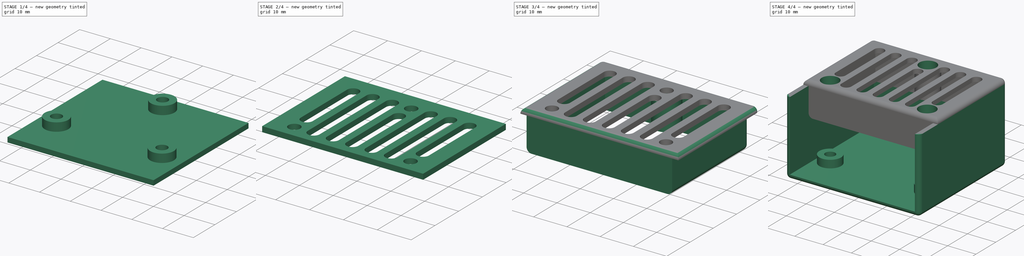
[diagram: build sequence overview — one tinted view per stage of 4, left to right]
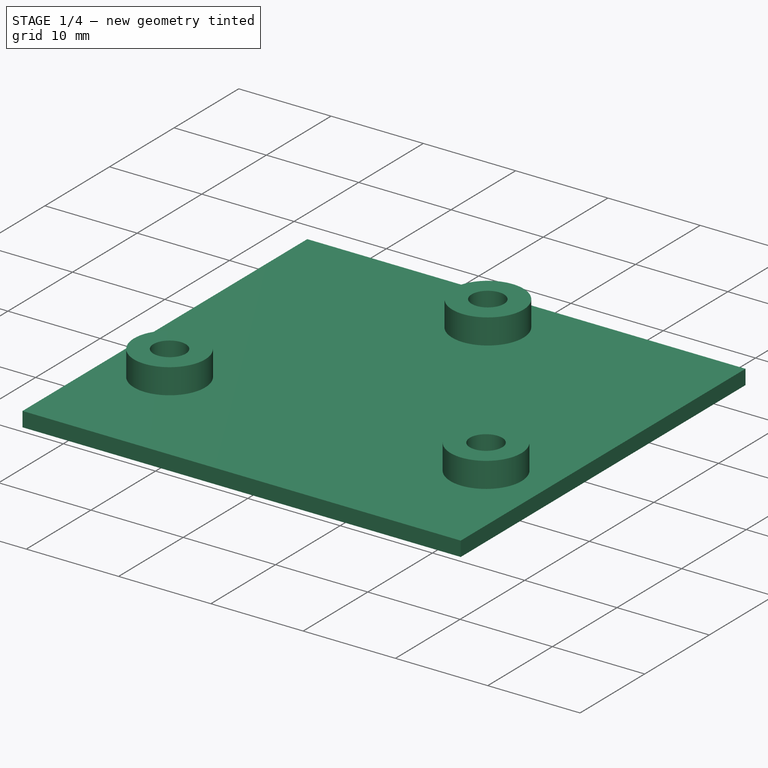
[diagram: stage 1 of 4 — iso view after this stage's code; geometry added in this stage tinted green]
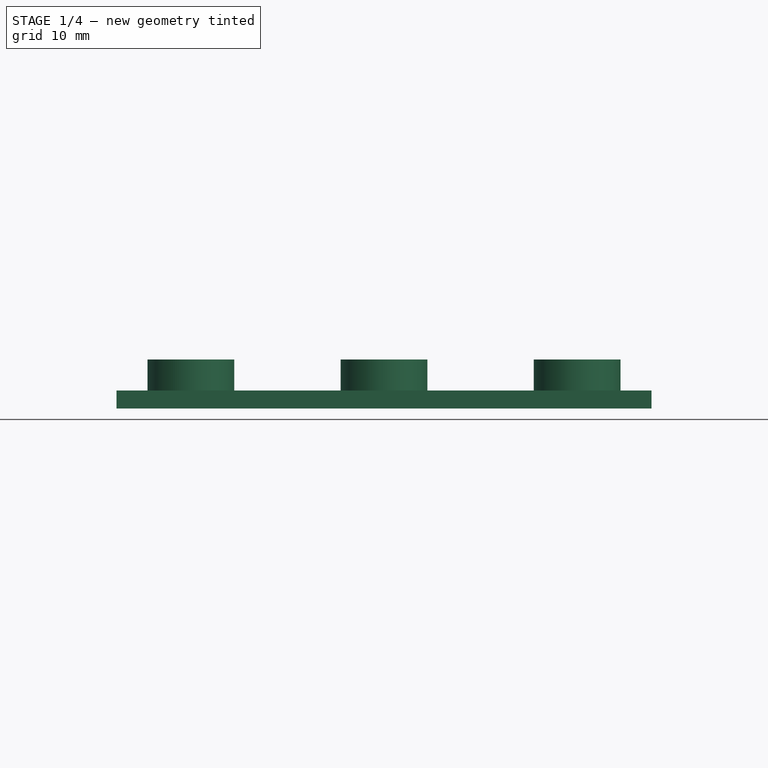
[diagram: stage 1 of 4 — front view after this stage's code; geometry added in this stage tinted green]
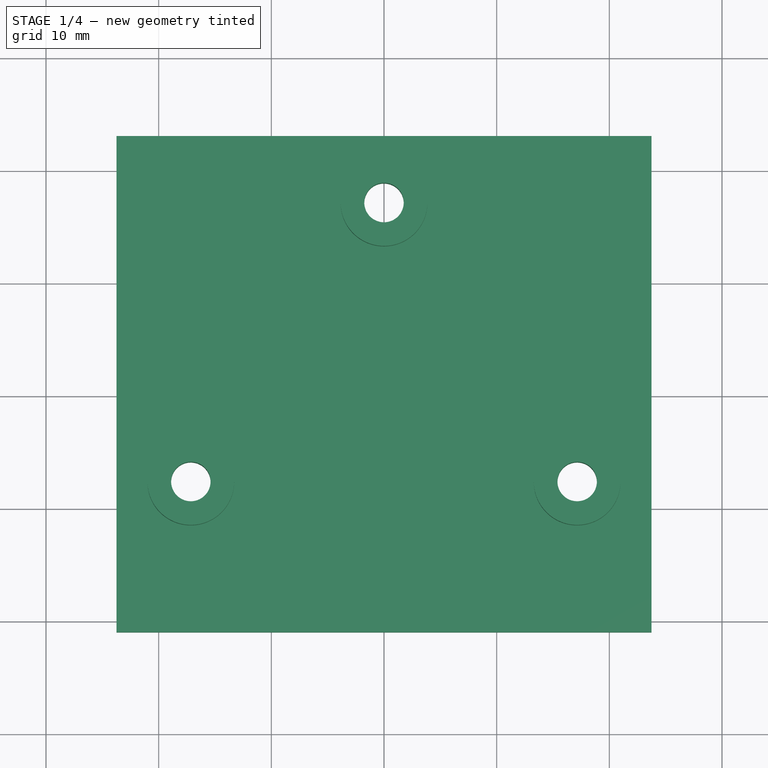
[diagram: stage 1 of 4 — top view after this stage's code; geometry added in this stage tinted green]
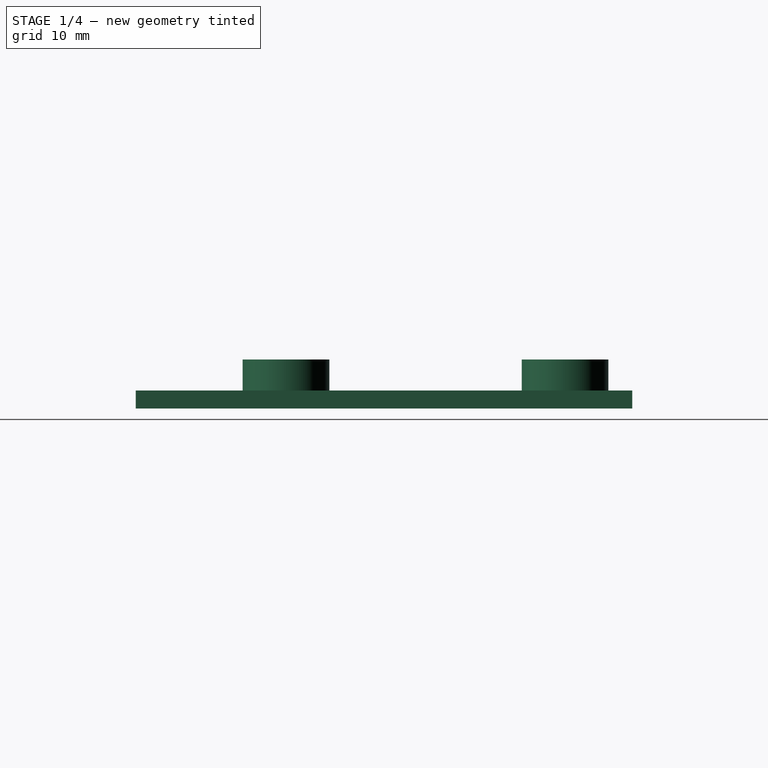
[diagram: stage 1 of 4 — right view after this stage's code; geometry added in this stage tinted green]
FCSTD DOCUMENT  (FreeCAD 0.19R24291 (Git))
Label: ESPDimmer
License: All rights reserved
LicenseURL: http://en.wikipedia.org/wiki/All_rights_reserved
objects: Sketcher::SketchObject×9, PartDesign::Pad×6, PartDesign::Pocket×2, PartDesign::Fillet×2, PartDesign::Body×2, Spreadsheet::Sheet×1, PartDesign::ShapeBinder×1
note: 32 computed .brp shape members not serialized (recipe doc carries the construction recipe); baked Part::Feature solids carry a one-line shape summary decoded from their .brp

FEATURE [Sketcher::SketchObject] Sketch  label="B_Template_top"
  FullyConstrained = true
  MapMode = 5
  Support = -> [XY_Plane]
  sketch-geometry (24):
    g0: LineSegment StartX=-21.59 StartY=20.955 StartZ=0 EndX=21.59 EndY=20.955 EndZ=0
    g1: LineSegment StartX=21.59 StartY=20.955 StartZ=0 EndX=21.59 EndY=-20.955 EndZ=0
    g2: LineSegment StartX=21.59 StartY=-20.955 StartZ=0 EndX=-21.59 EndY=-20.955 EndZ=0
    g3: LineSegment StartX=-21.59 StartY=-20.955 StartZ=0 EndX=-21.59 EndY=20.955 EndZ=0
    g4: LineSegment StartX=-1.3e-15 StartY=20.955 StartZ=0 EndX=-1.3e-15 EndY=-20.955 EndZ=0
    g5: Circle CenterX=-1.3e-15 CenterY=17.145 CenterZ=0 NormalX=0 NormalY=0 NormalZ=1 AngleXU=0 Radius=1.75
    g6: Circle CenterX=-17.145 CenterY=-7.62 CenterZ=0 NormalX=0 NormalY=0 NormalZ=1 AngleXU=0 Radius=1.75
    g7: Circle CenterX=17.145 CenterY=-7.62 CenterZ=0 NormalX=0 NormalY=0 NormalZ=1 AngleXU=0 Radius=1.75
    g8: LineSegment StartX=-21.59 StartY=-11.755 StartZ=0 EndX=21.59 EndY=-11.755 EndZ=0
    g9: LineSegment StartX=-22.09 StartY=21.455 StartZ=0 EndX=22.09 EndY=21.455 EndZ=0
    g10: LineSegment StartX=22.09 StartY=21.455 StartZ=0 EndX=22.09 EndY=-20.955 EndZ=0
    g11: LineSegment StartX=-22.09 StartY=-20.955 StartZ=0 EndX=-22.09 EndY=21.455 EndZ=0
    g12: LineSegment StartX=-23.74 StartY=23.105 StartZ=0 EndX=23.74 EndY=23.105 EndZ=0
    g13: LineSegment StartX=23.74 StartY=23.105 StartZ=0 EndX=23.74 EndY=-20.955 EndZ=0
    g14: LineSegment StartX=-23.74 StartY=-20.955 StartZ=0 EndX=-23.74 EndY=23.105 EndZ=0
    g15: LineSegment StartX=-22.09 StartY=21.455 StartZ=0 EndX=-23.74 EndY=21.455 EndZ=0
    g16: LineSegment StartX=22.09 StartY=21.455 StartZ=0 EndX=22.09 EndY=23.105 EndZ=0
    g17: LineSegment StartX=22.09 StartY=-20.955 StartZ=0 EndX=23.74 EndY=-20.955 EndZ=0
    g18: LineSegment StartX=-21.59 StartY=20.955 StartZ=0 EndX=-22.09 EndY=20.955 EndZ=0
    g19: LineSegment StartX=21.59 StartY=20.955 StartZ=0 EndX=21.59 EndY=21.455 EndZ=0
    g20: LineSegment StartX=21.59 StartY=-20.955 StartZ=0 EndX=22.09 EndY=-20.955 EndZ=0
    g21: LineSegment StartX=-21.59 StartY=-10.105 StartZ=0 EndX=21.59 EndY=-10.105 EndZ=0
    g22: LineSegment StartX=-17.145 StartY=-10.105 StartZ=0 EndX=-17.145 EndY=-11.755 EndZ=0
    g23: LineSegment StartX=-23.74 StartY=-20.955 StartZ=0 EndX=-22.09 EndY=-20.955 EndZ=0
  constraints (72):
    c: Coincident(g0,g1)
    c: Coincident(g1,g2)
    c: Coincident(g2,g3)
    c: Coincident(g3,g0)
    c: Horizontal(g0)
    c: Horizontal(g2)
    c: Vertical(g1)
    c: Vertical(g3)
    c: DistanceX(g0,g0) = 43.18
    c: DistanceY(g3,g3) = 41.91
    c: PointOnObject(g4,g2)
    c: Vertical(g4)
    c: Symmetric(g0,g0,g4)
    c: PointOnObject(g5,g4)
    c: Equal(g7,g6)
    c: Equal(g6,g5)
    c: Radius(g5) = 1.75
    c: Symmetric(g6,g7,g4)
    c: DistanceY(g5,g0) = 3.81
    c: DistanceX(g6,g4) = 17.145
    c: DistanceY(g2,g6) = 13.335
    c: PointOnObject(g8,g3)
    c: PointOnObject(g8,g1)
    c: Horizontal(g8)
    c: DistanceY(g2,g8) = 9.2
    c: Coincident(g9,g10)
    c: Coincident(g11,g9)
    c: Horizontal(g9)
    c: Vertical(g10)
    c: Vertical(g11)
    c: Coincident(g12,g13)
    c: Coincident(g14,g12)
    c: Horizontal(g12)
    c: Vertical(g13)
    c: Vertical(g14)
    c: Coincident(g15,g9)
    c: PointOnObject(g15,g14)
    c: Horizontal(g15)
    c: Coincident(g16,g9)
    c: PointOnObject(g16,g12)
    c: Vertical(g16)
    c: Coincident(g17,g10)
    c: Horizontal(g17)
    c: Equal(g15,g16)
    c: Equal(g16,g17)
    c: DistanceY(g15,g12) = 1.65
    c: Coincident(g18,g0)
    c: PointOnObject(g18,g11)
    c: Horizontal(g18)
    c: Coincident(g19,g0)
    c: PointOnObject(g19,g9)
    c: Vertical(g19)
    c: Coincident(g20,g1)
    c: Horizontal(g20)
    c: Equal(g18,g19)
    c: Equal(g19,g20)
    c: DistanceY(g18,g15) = 0.5
    c: PointOnObject(g21,g3)
    c: PointOnObject(g21,g1)
    c: Horizontal(g21)
    c: PointOnObject(g22,g21)
    c: PointOnObject(g22,g8)
    c: Vertical(g22)
    c: PointOnObject(g6,g22)
    c: Symmetric(g2,g0,g-1)  '__ANCHOR__'
    c: Coincident(g13,g17)
    c: Coincident(g10,g20)
    c: Coincident(g23,g14)
    c: Coincident(g23,g11)
    c: Horizontal(g23)
    c: PointOnObject(g11,g2)
    c: Equal(g22,g15)
FEATURE [Sketcher::SketchObject] Sketch001  label="B_Base"
  ExternalGeometry = -> [Sketch]
  FullyConstrained = true
  MapMode = 5
  Support = -> [XY_Plane]
  sketch-geometry (7):
    g0: LineSegment StartX=-23.74 StartY=23.105 StartZ=0 EndX=23.74 EndY=23.105 EndZ=0
    g1: LineSegment StartX=23.74 StartY=23.105 StartZ=0 EndX=23.74 EndY=-20.955 EndZ=0
    g2: LineSegment StartX=23.74 StartY=-20.955 StartZ=0 EndX=-23.74 EndY=-20.955 EndZ=0
    g3: LineSegment StartX=-23.74 StartY=-20.955 StartZ=0 EndX=-23.74 EndY=23.105 EndZ=0
    g4: Circle CenterX=0 CenterY=17.145 CenterZ=0 NormalX=0 NormalY=0 NormalZ=1 AngleXU=0 Radius=1.75
    g5: Circle CenterX=17.145 CenterY=-7.62 CenterZ=0 NormalX=0 NormalY=0 NormalZ=1 AngleXU=0 Radius=1.75
    g6: Circle CenterX=-17.145 CenterY=-7.62 CenterZ=0 NormalX=0 NormalY=0 NormalZ=1 AngleXU=0 Radius=1.75
  constraints (16):
    c: Coincident(g0,g1)
    c: Coincident(g1,g2)
    c: Coincident(g2,g3)
    c: Coincident(g3,g0)
    c: Horizontal(g0)
    c: Horizontal(g2)
    c: Vertical(g1)
    c: Vertical(g3)
    c: Coincident(g0,g-3)
    c: Coincident(g1,g-4)
    c: Coincident(g4,g-5)
    c: Coincident(g5,g-7)
    c: Coincident(g6,g-6)
    c: Equal(g6,g-6)
    c: Equal(g4,g-5)
    c: Equal(g5,g-7)
FEATURE [PartDesign::Pad] Pad  label="B_Base_"
  Direction = (1,1,1)
  Length = 1.6
  Length2 = 100
  Profile = -> Sketch001
  Type = 0
FEATURE [Sketcher::SketchObject] Sketch002  label="B_Walls"
  AttachmentOffset = pos=(0,0,1.6) rot=(0,0,1;0rad)
  ExternalGeometry = -> [Sketch]
  FullyConstrained = true
  MapMode = 5
  Placement = pos=(0,0,1.6) rot=(0,0,1;0rad)
  Support = -> [XY_Plane]
  expr: .AttachmentOffset.Base.z = <<B_Base>>.AttachmentOffset.Base.z + <<B_Base_>>.Length
  sketch-geometry (8):
    g0: LineSegment StartX=-23.74 StartY=-20.955 StartZ=0 EndX=-22.09 EndY=-20.955 EndZ=0
    g1: LineSegment StartX=-22.09 StartY=-20.955 StartZ=0 EndX=-22.09 EndY=21.455 EndZ=0
    g2: LineSegment StartX=-22.09 StartY=21.455 StartZ=0 EndX=22.09 EndY=21.455 EndZ=0
    g3: LineSegment StartX=22.09 StartY=21.455 StartZ=0 EndX=22.09 EndY=-20.955 EndZ=0
    g4: LineSegment StartX=22.09 StartY=-20.955 StartZ=0 EndX=23.74 EndY=-20.955 EndZ=0
    g5: LineSegment StartX=23.74 StartY=-20.955 StartZ=0 EndX=23.74 EndY=23.105 EndZ=0
    g6: LineSegment StartX=23.74 StartY=23.105 StartZ=0 EndX=-23.74 EndY=23.105 EndZ=0
    g7: LineSegment StartX=-23.74 StartY=23.105 StartZ=0 EndX=-23.74 EndY=-20.955 EndZ=0
  constraints (16):
    c: Coincident(g-3,g0)
    c: Coincident(g0,g-5)
    c: Coincident(g0,g1)
    c: Coincident(g1,g-5)
    c: Coincident(g1,g2)
    c: Coincident(g2,g-4)
    c: Coincident(g2,g3)
    c: Coincident(g3,g-4)
    c: Coincident(g3,g4)
    c: Coincident(g4,g-6)
    c: Coincident(g4,g5)
    c: Coincident(g5,g-6)
    c: Coincident(g5,g6)
    c: Coincident(g6,g-3)
    c: Coincident(g6,g7)
    c: Coincident(g7,g0)
FEATURE [Sketcher::SketchObject] Sketch003  label="B_Bumps"
  AttachmentOffset = pos=(0,0,1.6) rot=(0,0,1;0rad)
  ExternalGeometry = -> [Sketch]
  FullyConstrained = true
  MapMode = 5
  Placement = pos=(0,0,1.6) rot=(0,0,1;0rad)
  Support = -> [XY_Plane]
  expr: .AttachmentOffset.Base.z = <<B_Base>>.AttachmentOffset.Base.z + <<B_Base_>>.Length
  expr: Constraints[1] = <<Screws>>.M3NutRadius + 0.45mm
  sketch-geometry (6):
    g0: Circle CenterX=-17.145 CenterY=-7.62 CenterZ=0 NormalX=0 NormalY=0 NormalZ=1 AngleXU=0 Radius=3.85
    g1: Circle CenterX=0 CenterY=17.145 CenterZ=0 NormalX=0 NormalY=0 NormalZ=1 AngleXU=0 Radius=3.85
    g2: Circle CenterX=17.145 CenterY=-7.62 CenterZ=0 NormalX=0 NormalY=0 NormalZ=1 AngleXU=0 Radius=3.85
    g3: Circle CenterX=-17.145 CenterY=-7.62 CenterZ=0 NormalX=0 NormalY=0 NormalZ=1 AngleXU=0 Radius=1.75
    g4: Circle CenterX=0 CenterY=17.145 CenterZ=0 NormalX=0 NormalY=0 NormalZ=1 AngleXU=0 Radius=1.75
    g5: Circle CenterX=17.145 CenterY=-7.62 CenterZ=0 NormalX=0 NormalY=0 NormalZ=1 AngleXU=0 Radius=1.75
  constraints (12):
    c: Coincident(g0,g-5)
    c: Radius(g0) = 3.85
    c: Coincident(g1,g-3)
    c: Coincident(g2,g-4)
    c: Equal(g0,g1)
    c: Equal(g1,g2)
    c: Coincident(g3,g0)
    c: Coincident(g4,g1)
    c: Coincident(g5,g2)
    c: Equal(g5,g-4)
    c: Equal(g3,g-5)
    c: Equal(g4,g-3)
FEATURE [Spreadsheet::Sheet] Spreadsheet002  label="Screws"
  cells = A2=Screw dimensions; B4=Name; C4=Value; D4=Description; B5=M3Radius; C5(M3Radius)==1.75mm; B6=M3HeadRadius; C6(M3HeadRadius)==3mm; B7=M3HeadHeight; C7(M3HeadHeight)==2.95mm; B8=M3WasherRadius; C8(M3WasherRadius)==3.7mm; B9=M3WasherHeight; C9(M3WasherHeight)==0.5mm; B10=M3NutRadius; C10(M3NutRadius)==3.4mm; B11=M3NutHeight; C11(M3NutHeight)==2.75mm; B12=M3NylocNutHeight; C12(M3NylocNutHeight)==4.1mm; B13=M3NutChannelWidth; C13(M3NutChannelWidth)==5.65mm; B14=M4Radius; C14(M4Radius)==2.2mm; B15=M4HeadRadius; C15(M4HeadRadius)==3.75mm; B16=M4HeadHeight; C16(M4HeadHeight)==4mm; B17=M4WasherRadius; C17(M4WasherRadius)==4.7mm; B18=M4NutRadius; C18(M4NutRadius)==4.25mm; B19=M4NutHeight; C19(M4NutHeight)==3.3mm; B20=M4NutDuctWidth; C20(M4NutDuctWidth)==7.1mm; B21=M5Radius; C21(M5Radius)==2.66mm; B22=M5HeadRadius; C22(M5HeadRadius)==4.5mm; B23=M5HeadHeight; C23(M5HeadHeight)==5mm; B24=M5NutRadius; C24(M5NutRadius)==4.75mm; B25=M5NutHeight; C25(M5NutHeight)==4mm; B27=M6Radius; C27(M6Radius)==3.15mm; B28=M6HeadRadius; C28(M6HeadRadius)==5.5mm; B35=0
FEATURE [PartDesign::Pad] Pad002  label="B_Bumps_"
  BaseFeature = -> Pad
  Direction = (1,1,1)
  Length = 2.75
  Length2 = 100
  Profile = -> Sketch003
  Type = 0
  expr: Length = <<Screws>>.M3NutHeight
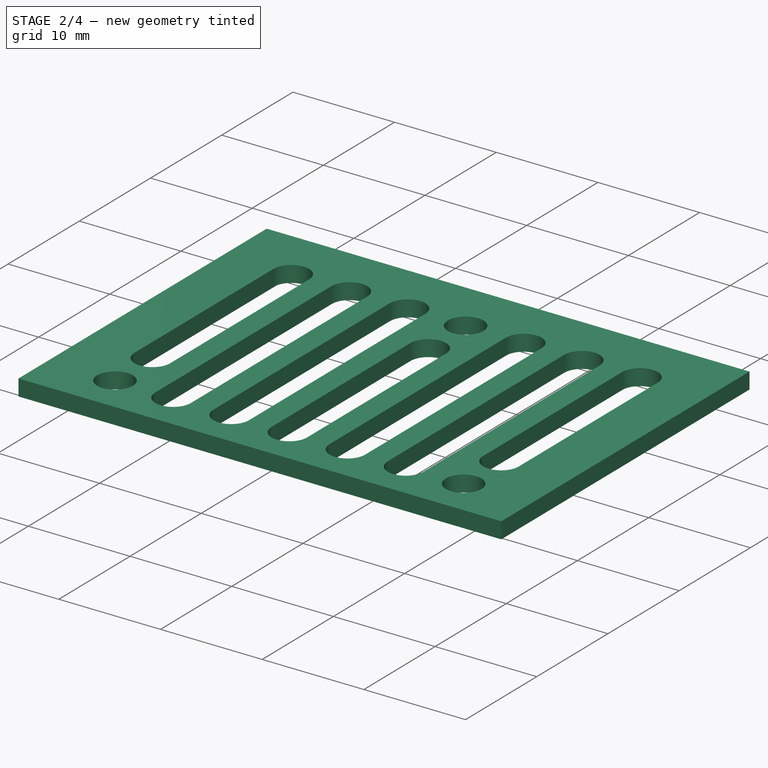
[diagram: stage 2 of 4 — iso view after this stage's code; geometry added in this stage tinted green]
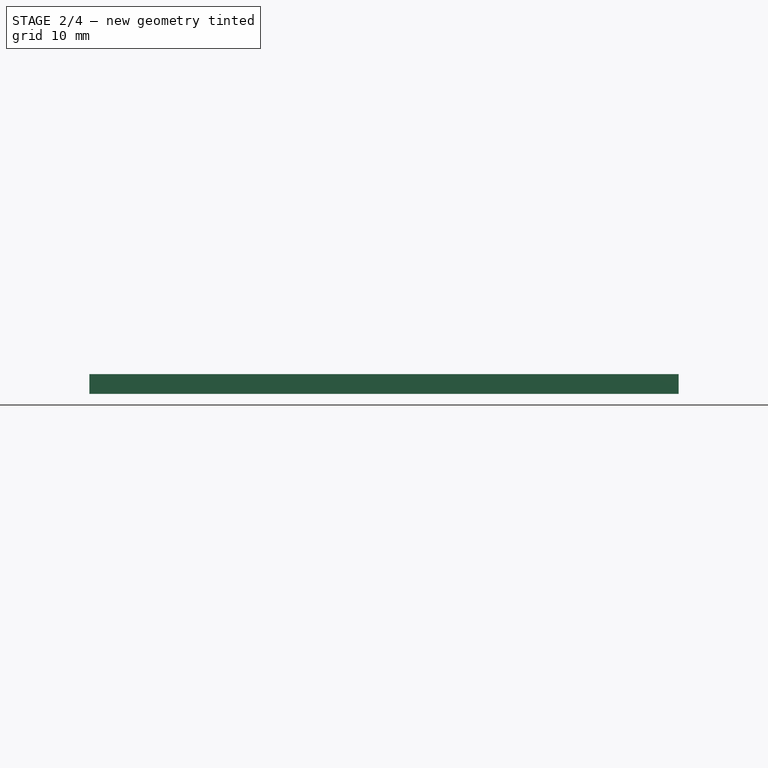
[diagram: stage 2 of 4 — front view after this stage's code; geometry added in this stage tinted green]
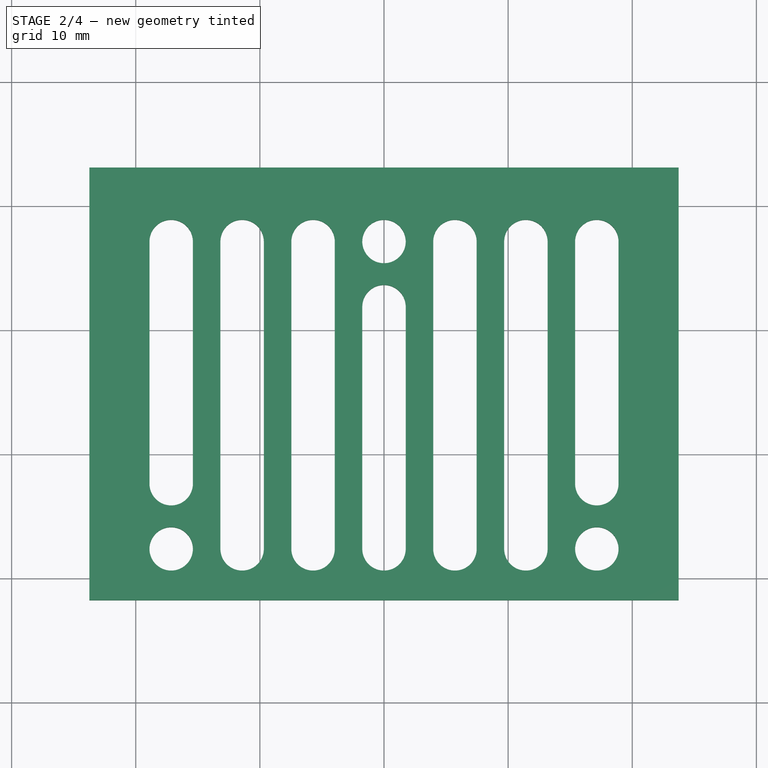
[diagram: stage 2 of 4 — top view after this stage's code; geometry added in this stage tinted green]
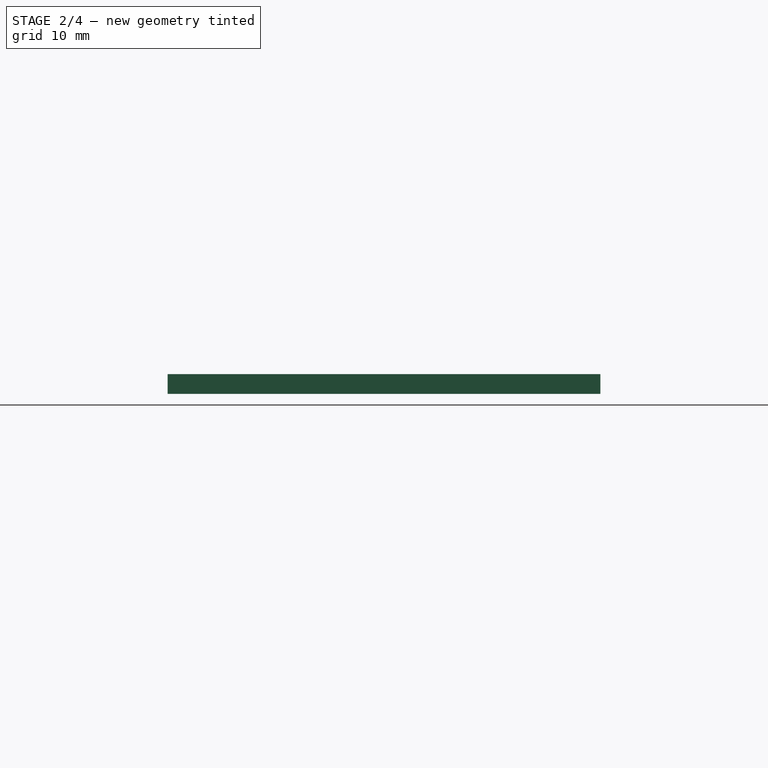
[diagram: stage 2 of 4 — right view after this stage's code; geometry added in this stage tinted green]
FEATURE [Sketcher::SketchObject] Sketch004  label="B_Nuts"
  AttachmentOffset = pos=(0,0,2.75) rot=(0,0,1;0rad)
  ExternalGeometry = -> [Sketch]
  FullyConstrained = true
  MapMode = 5
  Placement = pos=(0,0,2.75) rot=(0,0,1;0rad)
  Support = -> [XY_Plane]
  expr: .AttachmentOffset.Base.z = <<Screws>>.M3NutHeight
  expr: Constraints[55] = <<Screws>>.M3NutRadius
  sketch-geometry (21):
    g0: LineSegment StartX=3.4 StartY=17.145 StartZ=0 EndX=1.7 EndY=20.0895 EndZ=0
    g1: LineSegment StartX=1.7 StartY=20.0895 StartZ=0 EndX=-1.7 EndY=20.0895 EndZ=0
    g2: LineSegment StartX=-1.7 StartY=20.0895 StartZ=0 EndX=-3.4 EndY=17.145 EndZ=0
    g3: LineSegment StartX=-3.4 StartY=17.145 StartZ=0 EndX=-1.7 EndY=14.2005 EndZ=0
    g4: LineSegment StartX=-1.7 StartY=14.2005 StartZ=0 EndX=1.7 EndY=14.2005 EndZ=0
    g5: LineSegment StartX=1.7 StartY=14.2005 StartZ=0 EndX=3.4 EndY=17.145 EndZ=0
    g6: Circle CenterX=-1.3e-15 CenterY=17.145 CenterZ=0 NormalX=0 NormalY=0 NormalZ=1 AngleXU=0 Radius=3.4
    g7: LineSegment StartX=14.2005 StartY=-5.92 StartZ=0 EndX=14.2005 EndY=-9.32 EndZ=0
    g8: LineSegment StartX=14.2005 StartY=-9.32 StartZ=0 EndX=17.145 EndY=-11.02 EndZ=0
    g9: LineSegment StartX=17.145 StartY=-11.02 StartZ=0 EndX=20.0895 EndY=-9.32 EndZ=0
    g10: LineSegment StartX=20.0895 StartY=-9.32 StartZ=0 EndX=20.0895 EndY=-5.92 EndZ=0
    g11: LineSegment StartX=20.0895 StartY=-5.92 StartZ=0 EndX=17.145 EndY=-4.22 EndZ=0
    g12: LineSegment StartX=17.145 StartY=-4.22 StartZ=0 EndX=14.2005 EndY=-5.92 EndZ=0
    g13: Circle CenterX=17.145 CenterY=-7.62 CenterZ=0 NormalX=0 NormalY=0 NormalZ=1 AngleXU=0 Radius=3.4
    g14: LineSegment StartX=-14.2005 StartY=-5.92 StartZ=0 EndX=-17.145 EndY=-4.22 EndZ=0
    g15: LineSegment StartX=-17.145 StartY=-4.22 StartZ=0 EndX=-20.0895 EndY=-5.92 EndZ=0
    g16: LineSegment StartX=-20.0895 StartY=-5.92 StartZ=0 EndX=-20.0895 EndY=-9.32 EndZ=0
    g17: LineSegment StartX=-20.0895 StartY=-9.32 StartZ=0 EndX=-17.145 EndY=-11.02 EndZ=0
    g18: LineSegment StartX=-17.145 StartY=-11.02 StartZ=0 EndX=-14.2005 EndY=-9.32 EndZ=0
    g19: LineSegment StartX=-14.2005 StartY=-9.32 StartZ=0 EndX=-14.2005 EndY=-5.92 EndZ=0
    g20: Circle CenterX=-17.145 CenterY=-7.62 CenterZ=0 NormalX=0 NormalY=0 NormalZ=1 AngleXU=0 Radius=3.4
  constraints (48):
    c: Coincident(g0,g1)
    c: Coincident(g1,g2)
    c: Coincident(g2,g3)
    c: Coincident(g3,g4)
    c: Coincident(g4,g5)
    c: Coincident(g5,g0)
    c: Equal(g0, g1-g5) x5
    c: PointOnObject(g0,g6)
    c: PointOnObject(g1,g6)
    c: PointOnObject(g2,g6)
    c: PointOnObject(g3,g6)
    c: PointOnObject(g4,g6)
    c: PointOnObject(g5,g6)
    c: Coincident(g6,g-3)
    c: Coincident(g7,g8)
    c: Coincident(g8,g9)
    c: Coincident(g9,g10)
    c: Coincident(g10,g11)
    c: Coincident(g11,g12)
    c: Coincident(g12,g7)
    c: Equal(g7, g8-g12) x5
    c: PointOnObject(g7,g13)
    c: PointOnObject(g8,g13)
    c: PointOnObject(g9,g13)
    c: PointOnObject(g10,g13)
    c: PointOnObject(g11,g13)
    c: PointOnObject(g12,g13)
    c: Coincident(g13,g-5)
    c: Coincident(g14,g15)
    c: Coincident(g15,g16)
    c: Coincident(g16,g17)
    c: Coincident(g17,g18)
    c: Coincident(g18,g19)
    c: Coincident(g19,g14)
    c: Equal(g14, g15-g19) x5
    c: PointOnObject(g14,g20)
    c: PointOnObject(g15,g20)
    c: PointOnObject(g16,g20)
    c: PointOnObject(g17,g20)
    c: PointOnObject(g18,g20)
    c: PointOnObject(g19,g20)
    c: Coincident(g20,g-4)
    c: Horizontal(g1)
    c: Radius(g20) = 3.4
    c: Equal(g20,g6)
    c: Equal(g6,g13)
    c: Vertical(g16)
    c: Vertical(g7)
FEATURE [PartDesign::Pocket] Pocket  label="B_Nuts_"
  BaseFeature = -> Pad002
  Length = 5
  Length2 = 100
  Profile = -> Sketch004
  Type = 1
FEATURE [PartDesign::Pad] Pad001  label="B_Walls_"
  BaseFeature = -> Pocket
  Direction = (1,1,1)
  Length = 24.75
  Length2 = 100
  Profile = -> Sketch002
  Refine = true
  Type = 0
  expr: Length = <<B_Bumps_>>.Length + 22mm
FEATURE [PartDesign::Body] Body  label="Bottom"
  Group = -> [Sketch,Sketch001,Pad,Sketch002,Sketch003,Pad002,Sketch004,Pocket,Pad001,Fillet]
  Origin = -> Origin
  Tip = -> Fillet
FEATURE [PartDesign::ShapeBinder] ShapeBinder  label="T_B_top"
  Support = -> [Sketch]
  TraceSupport = false
FEATURE [Sketcher::SketchObject] Sketch005  label="T_Base"
  AttachmentOffset = pos=(0,0,26.35) rot=(0,0,1;0rad)
  ExternalGeometry = -> [ShapeBinder]
  FullyConstrained = true
  MapMode = 5
  Placement = pos=(0,0,26.35) rot=(0,0,1;0rad)
  Support = -> [XY_Plane001]
  expr: .AttachmentOffset.Base.z = <<B_Walls>>.AttachmentOffset.Base.z + <<B_Walls_>>.Length
  sketch-geometry (47):
    g0: LineSegment StartX=-23.74 StartY=23.105 StartZ=0 EndX=23.74 EndY=23.105 EndZ=0
    g1: LineSegment StartX=23.74 StartY=23.105 StartZ=0 EndX=23.74 EndY=-11.755 EndZ=0
    g2: LineSegment StartX=23.74 StartY=-11.755 StartZ=0 EndX=-23.74 EndY=-11.755 EndZ=0
    g3: LineSegment StartX=-23.74 StartY=-11.755 StartZ=0 EndX=-23.74 EndY=23.105 EndZ=0
    g4: Circle CenterX=-17.145 CenterY=-7.62 CenterZ=0 NormalX=0 NormalY=0 NormalZ=1 AngleXU=0 Radius=1.75
    g5: Circle CenterX=-1.3e-15 CenterY=17.145 CenterZ=0 NormalX=0 NormalY=0 NormalZ=1 AngleXU=0 Radius=1.75
    g6: Circle CenterX=17.145 CenterY=-7.62 CenterZ=0 NormalX=0 NormalY=0 NormalZ=1 AngleXU=0 Radius=1.75
    g7: ArcOfCircle CenterX=-17.145 CenterY=17.145 CenterZ=0 NormalX=0 NormalY=0 NormalZ=1 AngleXU=0 Radius=1.75 StartAngle=1e-16 EndAngle=3.14159
    g8: ArcOfCircle CenterX=-17.145 CenterY=-2.37 CenterZ=0 NormalX=0 NormalY=0 NormalZ=1 AngleXU=0 Radius=1.75 StartAngle=3.14159 EndAngle=6.28319
    g9: LineSegment StartX=-18.895 StartY=17.145 StartZ=0 EndX=-18.895 EndY=-2.37 EndZ=0
    g10: LineSegment StartX=-15.395 StartY=17.145 StartZ=0 EndX=-15.395 EndY=-2.37 EndZ=0
    g11: LineSegment StartX=-17.145 StartY=-7.62 StartZ=0 EndX=-17.145 EndY=-5.87 EndZ=0
    g12: LineSegment StartX=-17.145 StartY=-5.87 StartZ=0 EndX=-17.145 EndY=-4.12 EndZ=0
    g13: ArcOfCircle CenterX=-11.43 CenterY=-7.62 CenterZ=0 NormalX=0 NormalY=0 NormalZ=1 AngleXU=0 Radius=1.75 StartAngle=3.14159 EndAngle=6.28319
    g14: LineSegment StartX=-13.18 StartY=17.145 StartZ=0 EndX=-13.18 EndY=-7.62 EndZ=0
    g15: ArcOfCircle CenterX=-11.43 CenterY=17.145 CenterZ=0 NormalX=0 NormalY=0 NormalZ=1 AngleXU=0 Radius=1.75 StartAngle=6e-16 EndAngle=3.14159
    g16: LineSegment StartX=-9.68 StartY=17.145 StartZ=0 EndX=-9.68 EndY=-7.62 EndZ=0
    g17: ArcOfCircle CenterX=-5.715 CenterY=-7.62 CenterZ=0 NormalX=0 NormalY=0 NormalZ=1 AngleXU=0 Radius=1.75 StartAngle=3.14159 EndAngle=6.28319
    g18: LineSegment StartX=-7.465 StartY=17.145 StartZ=0 EndX=-7.465 EndY=-7.62 EndZ=0
    g19: ArcOfCircle CenterX=-5.715 CenterY=17.145 CenterZ=0 NormalX=0 NormalY=0 NormalZ=1 AngleXU=0 Radius=1.75 StartAngle=0 EndAngle=3.14159
    g20: LineSegment StartX=-3.965 StartY=17.145 StartZ=0 EndX=-3.965 EndY=-7.62 EndZ=0
    g21: ArcOfCircle CenterX=6e-16 CenterY=-7.62 CenterZ=0 NormalX=0 NormalY=0 NormalZ=1 AngleXU=0 Radius=1.75 StartAngle=3.14159 EndAngle=6.28319
    g22: LineSegment StartX=-1.75 StartY=11.895 StartZ=0 EndX=-1.75 EndY=-7.62 EndZ=0
    g23: ArcOfCircle CenterX=5e-16 CenterY=11.895 CenterZ=0 NormalX=0 NormalY=0 NormalZ=1 AngleXU=0 Radius=1.75 StartAngle=3e-16 EndAngle=3.14159
    g24: LineSegment StartX=1.75 StartY=11.895 StartZ=0 EndX=1.75 EndY=-7.62 EndZ=0
    g25: ArcOfCircle CenterX=5.715 CenterY=-7.62 CenterZ=0 NormalX=0 NormalY=0 NormalZ=1 AngleXU=0 Radius=1.75 StartAngle=3.14159 EndAngle=6.28319
    g26: LineSegment StartX=3.965 StartY=17.145 StartZ=0 EndX=3.965 EndY=-7.62 EndZ=0
    g27: ArcOfCircle CenterX=5.715 CenterY=17.145 CenterZ=0 NormalX=0 NormalY=0 NormalZ=1 AngleXU=0 Radius=1.75 StartAngle=-9e-16 EndAngle=3.14159
    g28: LineSegment StartX=7.465 StartY=17.145 StartZ=0 EndX=7.465 EndY=-7.62 EndZ=0
    g29: ArcOfCircle CenterX=11.43 CenterY=-7.62 CenterZ=0 NormalX=0 NormalY=0 NormalZ=1 AngleXU=0 Radius=1.75 StartAngle=3.14159 EndAngle=6.28319
    g30: LineSegment StartX=9.68 StartY=17.145 StartZ=0 EndX=9.68 EndY=-7.62 EndZ=0
    g31: ArcOfCircle CenterX=11.43 CenterY=17.145 CenterZ=0 NormalX=0 NormalY=0 NormalZ=1 AngleXU=0 Radius=1.75 StartAngle=-9e-16 EndAngle=3.14159
    g32: LineSegment StartX=13.18 StartY=17.145 StartZ=0 EndX=13.18 EndY=-7.62 EndZ=0
    g33: ArcOfCircle CenterX=17.145 CenterY=-2.37 CenterZ=0 NormalX=0 NormalY=0 NormalZ=1 AngleXU=0 Radius=1.75 StartAngle=3.14159 EndAngle=6.28319
    g34: LineSegment StartX=15.395 StartY=17.145 StartZ=0 EndX=15.395 EndY=-2.37 EndZ=0
    g35: ArcOfCircle CenterX=17.145 CenterY=17.145 CenterZ=0 NormalX=0 NormalY=0 NormalZ=1 AngleXU=0 Radius=1.75 StartAngle=0 EndAngle=3.14159
    g36: LineSegment StartX=18.895 StartY=17.145 StartZ=0 EndX=18.895 EndY=-2.37 EndZ=0
    g37: LineSegment StartX=-22.09 StartY=21.455 StartZ=0 EndX=-23.74 EndY=21.455 EndZ=0
    g38: LineSegment StartX=17.145 StartY=-7.62 StartZ=0 EndX=17.145 EndY=-2.37 EndZ=0
    g39: LineSegment StartX=-15.395 StartY=17.145 StartZ=0 EndX=-13.18 EndY=17.145 EndZ=0
    g40: LineSegment StartX=-9.68 StartY=17.145 StartZ=0 EndX=-7.465 EndY=17.145 EndZ=0
    g41: LineSegment StartX=-1.75 StartY=11.895 StartZ=0 EndX=-3.965 EndY=11.895 EndZ=0
    g42: LineSegment StartX=7.465 StartY=17.145 StartZ=0 EndX=9.68 EndY=17.145 EndZ=0
    g43: LineSegment StartX=13.18 StartY=17.145 StartZ=0 EndX=15.395 EndY=17.145 EndZ=0
    g44: LineSegment StartX=1.75 StartY=11.895 StartZ=0 EndX=3.965 EndY=11.895 EndZ=0
    g45: LineSegment StartX=-1.3e-15 StartY=15.395 StartZ=0 EndX=-1.3e-15 EndY=13.645 EndZ=0
    g46: LineSegment StartX=-17.145 StartY=-7.62 StartZ=0 EndX=17.145 EndY=-7.62 EndZ=0
  constraints (118):
    c: Coincident(g0,g1)
    c: Coincident(g1,g2)
    c: Coincident(g2,g3)
    c: Coincident(g3,g0)
    c: Horizontal(g0)
    c: Horizontal(g2)
    c: Vertical(g1)
    c: Vertical(g3)
    c: Coincident(g0,g-3)
    c: PointOnObject(g1,g-4)
    c: PointOnObject(g-5,g2)
    c: Coincident(g4,g-7)
    c: Coincident(g5,g-6)
    c: Coincident(g6,g-8)
    c: Equal(g4,g-7)
    c: Equal(g5,g-6)
    c: Equal(g6,g-8)
    c: Tangent(g7,g10) = 1.5708
    c: Tangent(g7,g9) = -1.5708
    c: Tangent(g9,g8) = -1.5708
    c: Tangent(g10,g8) = 1.5708
    c: Vertical(g9)
    c: Coincident(g11,g4)
    c: PointOnObject(g11,g4)
    c: Vertical(g11)
    c: Coincident(g12,g11)
    c: PointOnObject(g12,g8)
    c: Vertical(g12)
    c: Equal(g12,g11)
    c: Tangent(g15,g16) = 1.5708
    c: Tangent(g15,g14) = -1.5708
    c: Tangent(g14,g13) = -1.5708
    c: Tangent(g16,g13) = 1.5708
    c: Vertical(g14)
    c: Tangent(g19,g20) = 1.5708
    c: Tangent(g19,g18) = -1.5708
    c: Tangent(g18,g17) = -1.5708
    c: Tangent(g20,g17) = 1.5708
    c: Vertical(g18)
    c: Tangent(g23,g24) = 1.5708
    c: Tangent(g23,g22) = -1.5708
    c: Tangent(g22,g21) = -1.5708
    c: Tangent(g24,g21) = 1.5708
    c: Vertical(g22)
    c: Tangent(g27,g28) = 1.5708
    c: Tangent(g27,g26) = -1.5708
    c: Tangent(g26,g25) = -1.5708
    c: Tangent(g28,g25) = 1.5708
    c: Vertical(g26)
    c: Tangent(g31,g32) = 1.5708
    c: Tangent(g31,g30) = -1.5708
    c: Tangent(g30,g29) = -1.5708
    c: Tangent(g32,g29) = 1.5708
    c: Vertical(g30)
    c: Tangent(g35,g36) = 1.5708
    c: Tangent(g35,g34) = -1.5708
    c: Tangent(g34,g33) = -1.5708
    c: Tangent(g36,g33) = 1.5708
    c: Vertical(g34)
    c: Coincident(g37,g-11)
    c: PointOnObject(g37,g3)
    c: Horizontal(g37)
    c: Equal(g5,g7)
    c: Equal(g7,g15)
    c: Equal(g15,g19)
    c: Equal(g19,g23)
    c: Equal(g23,g27)
    c: Equal(g27,g31)
    c: Equal(g31,g35)
    c: Vertical(g36)
    c: Vertical(g32)
    c: Vertical(g28)
    c: Vertical(g24)
    c: Vertical(g20)
    c: Vertical(g16)
    c: Vertical(g10)
    c: PointOnObject(g8,g12)
    c: Coincident(g38,g6)
    c: Vertical(g38)
    c: Coincident(g39,g7)
    c: Coincident(g39,g14)
    c: Horizontal(g39)
    c: Coincident(g40,g15)
    c: Coincident(g40,g18)
    c: Horizontal(g40)
    c: Coincident(g41,g22)
    c: PointOnObject(g41,g20)
    c: Horizontal(g41)
    c: Coincident(g43,g31)
    c: Coincident(g43,g34)
    c: Horizontal(g43)
    c: PointOnObject(g5,g40)
    c: PointOnObject(g5,g43)
    c: Coincident(g33,g38)
    c: Coincident(g44,g23)
    c: PointOnObject(g44,g26)
    c: Horizontal(g44)
    c: Horizontal(g42)
    c: Equal(g39,g40)
    c: Equal(g40,g41)
    c: Equal(g41,g44)
    c: Equal(g44,g42)
    c: Equal(g42,g43)
    c: Coincident(g27,g42)
    c: Coincident(g42,g30)
    c: PointOnObject(g45,g5)
    c: PointOnObject(g45,g23)
    c: Vertical(g45)
    c: PointOnObject(g5,g45)
    c: Equal(g12,g45)
    c: Equal(g10,g34)
    c: Coincident(g46,g4)
    c: Coincident(g46,g6)
    c: PointOnObject(g13,g46)
    c: PointOnObject(g17,g46)
    c: PointOnObject(g21,g46)
    c: PointOnObject(g25,g46)
    c: PointOnObject(g29,g46)
FEATURE [PartDesign::Pad] Pad003  label="T_Base_"
  Direction = (1,1,1)
  Length = 1.6
  Length2 = 100
  Profile = -> Sketch005
  Type = 0
  expr: Length = <<B_Base_>>.Length
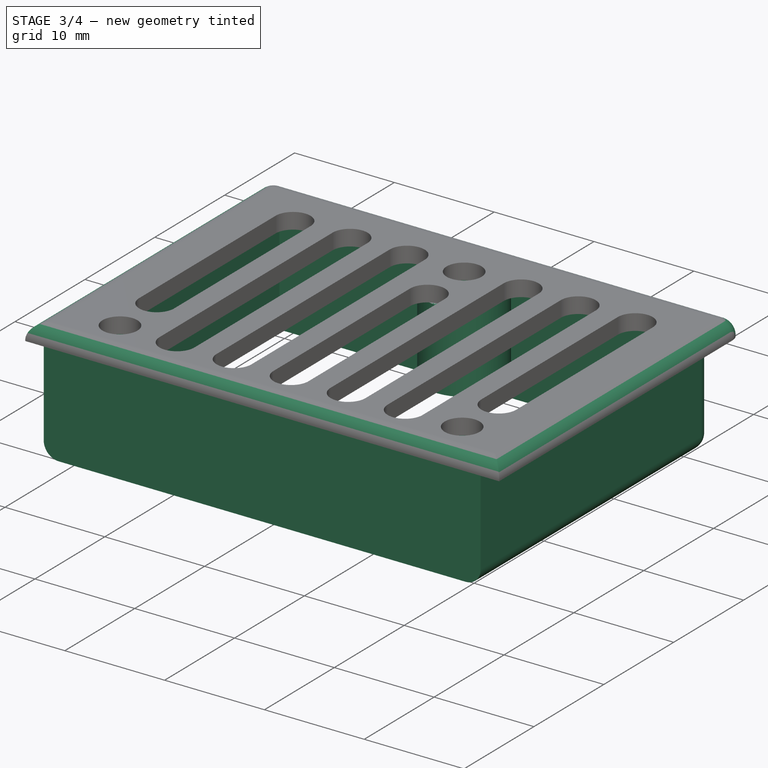
[diagram: stage 3 of 4 — iso view after this stage's code; geometry added in this stage tinted green]
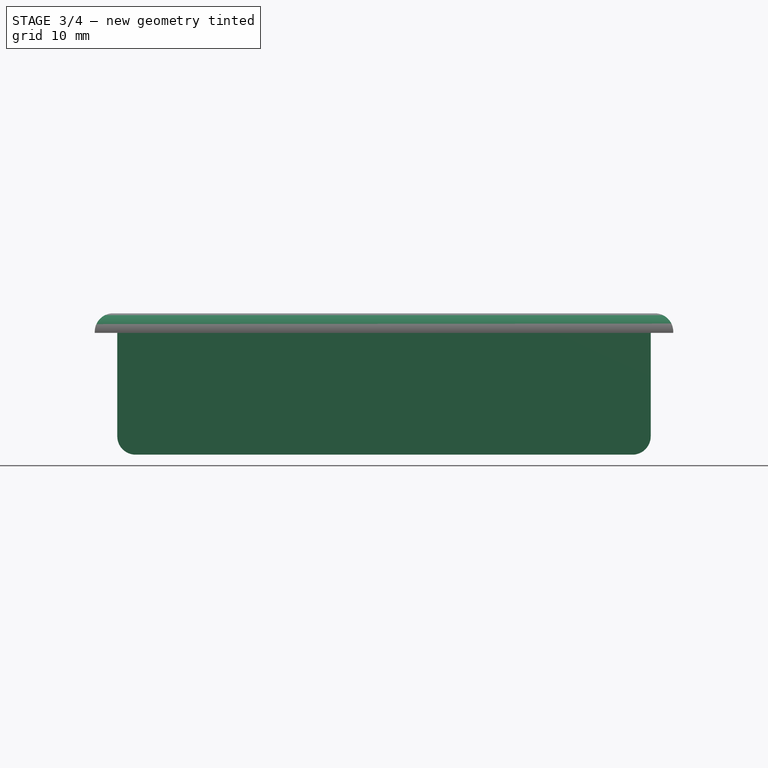
[diagram: stage 3 of 4 — front view after this stage's code; geometry added in this stage tinted green]
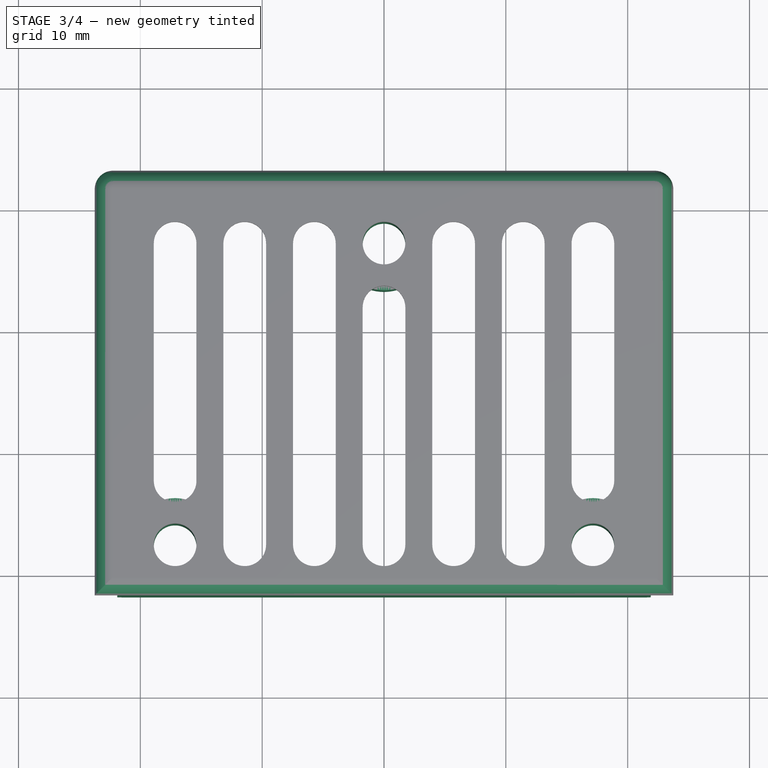
[diagram: stage 3 of 4 — top view after this stage's code; geometry added in this stage tinted green]
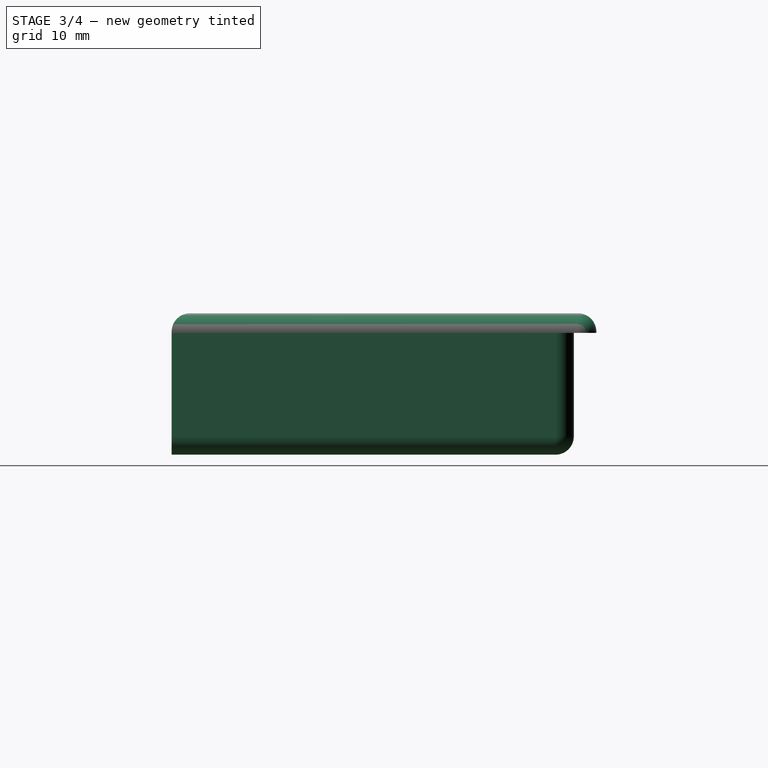
[diagram: stage 3 of 4 — right view after this stage's code; geometry added in this stage tinted green]
FEATURE [Sketcher::SketchObject] Sketch006  label="T_Walls"
  AttachmentOffset = pos=(0,0,26.35) rot=(0,0,1;0rad)
  ExternalGeometry = -> [ShapeBinder]
  FullyConstrained = true
  MapMode = 5
  Placement = pos=(0,0,26.35) rot=(0,0,1;0rad)
  Support = -> [XY_Plane001]
  expr: .AttachmentOffset.Base.z = <<T_Base>>.AttachmentOffset.Base.z
  sketch-geometry (15):
    g0: LineSegment StartX=-21.89 StartY=21.255 StartZ=0 EndX=21.89 EndY=21.255 EndZ=0
    g1: LineSegment StartX=21.89 StartY=21.255 StartZ=0 EndX=21.89 EndY=-11.755 EndZ=0
    g2: LineSegment StartX=21.89 StartY=-11.755 StartZ=0 EndX=-21.89 EndY=-11.755 EndZ=0
    g3: LineSegment StartX=-21.89 StartY=-11.755 StartZ=0 EndX=-21.89 EndY=21.255 EndZ=0
    g4: LineSegment StartX=-21.89 StartY=-11.755 StartZ=0 EndX=-22.09 EndY=-11.755 EndZ=0
    g5: LineSegment StartX=21.89 StartY=-11.755 StartZ=0 EndX=22.09 EndY=-11.755 EndZ=0
    g6: LineSegment StartX=21.89 StartY=21.255 StartZ=0 EndX=21.89 EndY=21.455 EndZ=0
    g7: LineSegment StartX=-20.24 StartY=-10.105 StartZ=0 EndX=20.24 EndY=-10.105 EndZ=0
    g8: LineSegment StartX=20.24 StartY=-10.105 StartZ=0 EndX=20.24 EndY=19.605 EndZ=0
    g9: LineSegment StartX=20.24 StartY=19.605 StartZ=0 EndX=-20.24 EndY=19.605 EndZ=0
    g10: LineSegment StartX=-20.24 StartY=19.605 StartZ=0 EndX=-20.24 EndY=-10.105 EndZ=0
    g11: LineSegment StartX=-21.59 StartY=-10.105 StartZ=0 EndX=-21.59 EndY=-11.755 EndZ=0
    g12: LineSegment StartX=-20.24 StartY=19.605 StartZ=0 EndX=-21.89 EndY=19.605 EndZ=0
    g13: LineSegment StartX=20.24 StartY=19.605 StartZ=0 EndX=20.24 EndY=21.255 EndZ=0
    g14: LineSegment StartX=20.24 StartY=-10.105 StartZ=0 EndX=21.89 EndY=-10.105 EndZ=0
  constraints (44):
    c: Coincident(g0,g1)
    c: Coincident(g1,g2)
    c: Coincident(g2,g3)
    c: Coincident(g3,g0)
    c: Horizontal(g0)
    c: Horizontal(g2)
    c: Vertical(g1)
    c: Vertical(g3)
    c: PointOnObject(g1,g-6)
    c: Coincident(g4,g2)
    c: PointOnObject(g4,g-5)
    c: Horizontal(g4)
    c: Coincident(g5,g1)
    c: PointOnObject(g5,g-3)
    c: Horizontal(g5)
    c: Coincident(g6,g0)
    c: PointOnObject(g6,g-4)
    c: Vertical(g6)
    c: Equal(g4,g5)
    c: Equal(g5,g6)
    c: DistanceX(g-5,g0) = 0.2
    c: Coincident(g7,g8)
    c: Coincident(g8,g9)
    c: Coincident(g9,g10)
    c: Coincident(g10,g7)
    c: Horizontal(g7)
    c: Horizontal(g9)
    c: Vertical(g8)
    c: Vertical(g10)
    c: PointOnObject(g7,g-7)
    c: Coincident(g11,g-7)
    c: Coincident(g11,g-6)
    c: Coincident(g12,g9)
    c: PointOnObject(g12,g3)
    c: Horizontal(g12)
    c: Coincident(g13,g8)
    c: PointOnObject(g13,g0)
    c: Vertical(g13)
    c: Coincident(g14,g7)
    c: PointOnObject(g14,g1)
    c: Horizontal(g14)
    c: Equal(g11,g12)
    c: Equal(g12,g13)
    c: Equal(g13,g14)
FEATURE [Sketcher::SketchObject] Sketch007  label="T_ScrewBumps"
  AttachmentOffset = pos=(0,0,26.35) rot=(0,0,1;0rad)
  ExternalGeometry = -> [ShapeBinder]
  FullyConstrained = true
  MapMode = 5
  Placement = pos=(0,0,26.35) rot=(0,0,1;0rad)
  Support = -> [XY_Plane001]
  expr: Constraints[5] = <<Screws>>.M3HeadRadius + 0.85mm
  expr: .AttachmentOffset.Base.z = <<T_Walls>>.AttachmentOffset.Base.z
  sketch-geometry (6):
    g0: Circle CenterX=-17.145 CenterY=-7.62 CenterZ=0 NormalX=0 NormalY=0 NormalZ=1 AngleXU=0 Radius=3.85
    g1: Circle CenterX=0 CenterY=17.145 CenterZ=0 NormalX=0 NormalY=0 NormalZ=1 AngleXU=0 Radius=3.85
    g2: Circle CenterX=17.145 CenterY=-7.62 CenterZ=0 NormalX=0 NormalY=0 NormalZ=1 AngleXU=0 Radius=3.85
    g3: Circle CenterX=0 CenterY=17.145 CenterZ=0 NormalX=0 NormalY=0 NormalZ=1 AngleXU=0 Radius=1.75
    g4: Circle CenterX=-17.145 CenterY=-7.62 CenterZ=0 NormalX=0 NormalY=0 NormalZ=1 AngleXU=0 Radius=1.75
    g5: Circle CenterX=17.145 CenterY=-7.62 CenterZ=0 NormalX=0 NormalY=0 NormalZ=1 AngleXU=0 Radius=1.75
  constraints (12):
    c: Coincident(g0,g-5)
    c: Coincident(g1,g-3)
    c: Coincident(g2,g-4)
    c: Equal(g1,g0)
    c: Equal(g0,g2)
    c: Radius(g1) = 3.85
    c: Coincident(g3,g1)
    c: Coincident(g4,g0)
    c: Coincident(g5,g2)
    c: Equal(g5,g-4)
    c: Equal(g3,g-3)
    c: Equal(g4,g-5)
FEATURE [Sketcher::SketchObject] Sketch008  label="T_Heads"
  AttachmentOffset = pos=(0,0,20) rot=(0,0,1;0rad)
  ExternalGeometry = -> [ShapeBinder]
  FullyConstrained = true
  MapMode = 5
  Placement = pos=(0,0,20) rot=(0,0,1;0rad)
  Support = -> [XY_Plane001]
  expr: Constraints[5] = <<Screws>>.M3HeadRadius
  expr: .AttachmentOffset.Base.z = <<T_ScrewBumps>>.AttachmentOffset.Base.z - <<T_ScrewBumps_>>.Length + <<T_Base_>>.Length
  sketch-geometry (3):
    g0: Circle CenterX=0 CenterY=17.145 CenterZ=0 NormalX=0 NormalY=0 NormalZ=1 AngleXU=0 Radius=3
    g1: Circle CenterX=17.145 CenterY=-7.62 CenterZ=0 NormalX=0 NormalY=0 NormalZ=1 AngleXU=0 Radius=3
    g2: Circle CenterX=-17.145 CenterY=-7.62 CenterZ=0 NormalX=0 NormalY=0 NormalZ=1 AngleXU=0 Radius=3
  constraints (6):
    c: Coincident(g0,g-5)
    c: Coincident(g1,g-3)
    c: Coincident(g2,g-4)
    c: Equal(g2,g0)
    c: Equal(g0,g1)
    c: Radius(g0) = 3
FEATURE [PartDesign::Pad] Pad004  label="T_Walls_"
  BaseFeature = -> Pad003
  Direction = (1,1,1)
  Length = 10
  Length2 = 100
  Profile = -> Sketch006
  Reversed = true
  Type = 0
FEATURE [PartDesign::Fillet] Fillet001
  Base = -> Pad004 [Edge1,Edge2,Edge4,Edge7,Edge16,Edge10,Edge52,Edge50,Edge53,Edge55,Edge51]
  BaseFeature = -> Pad004
  Radius = 1.5
  SupportTransform = false
FEATURE [PartDesign::Pad] Pad005  label="T_ScrewBumps_"
  BaseFeature = -> Fillet001
  Direction = (1,1,1)
  Length = 7.95
  Length2 = 100
  Profile = -> Sketch007
  Reversed = true
  Type = 0
  expr: Length = <<T_ScrewBumps>>.AttachmentOffset.Base.z - 20mm + <<T_Base_>>.Length
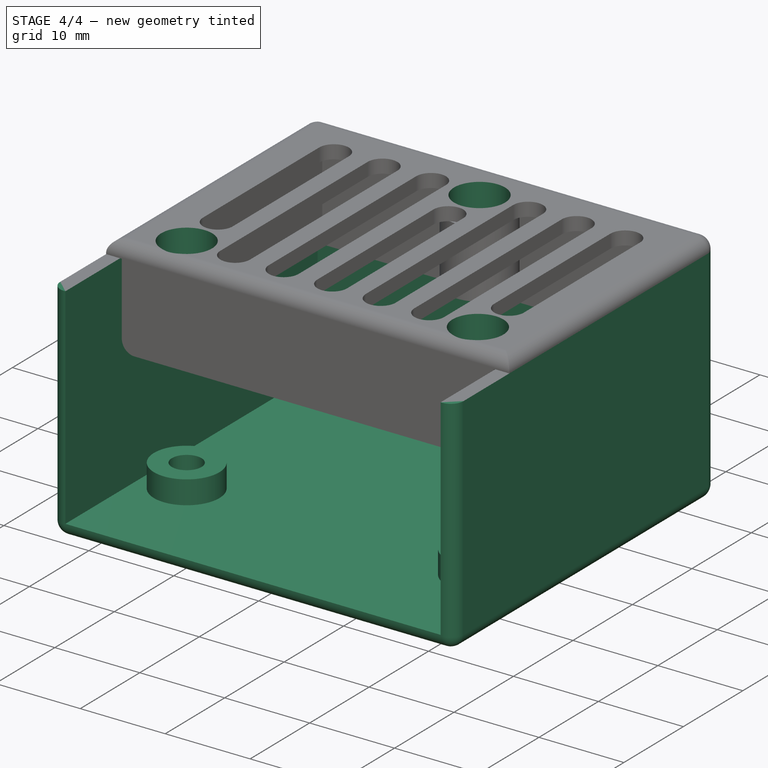
[diagram: stage 4 of 4 — iso view after this stage's code; geometry added in this stage tinted green]
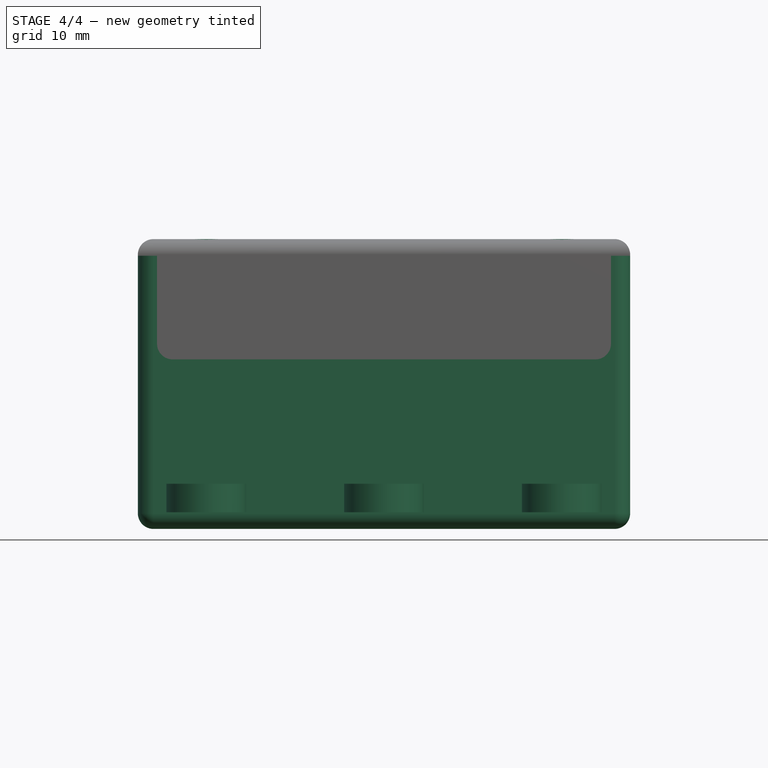
[diagram: stage 4 of 4 — front view after this stage's code; geometry added in this stage tinted green]
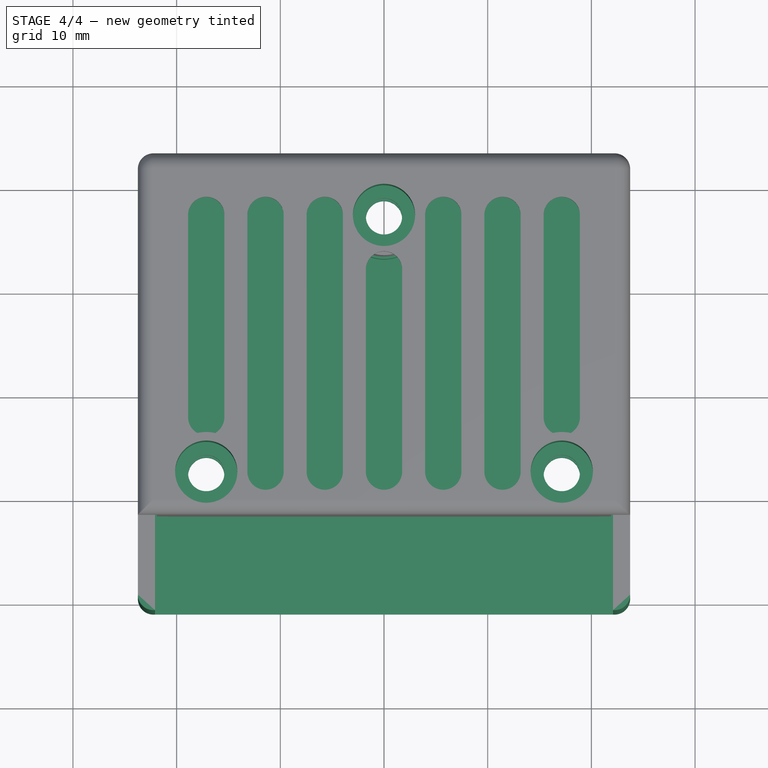
[diagram: stage 4 of 4 — top view after this stage's code; geometry added in this stage tinted green]
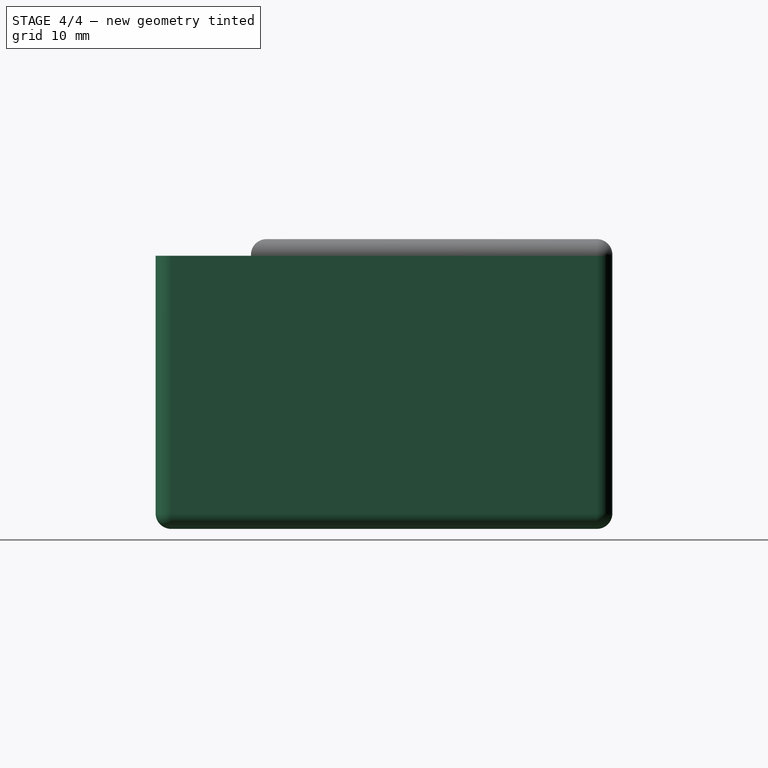
[diagram: stage 4 of 4 — right view after this stage's code; geometry added in this stage tinted green]
FEATURE [PartDesign::Fillet] Fillet
  Base = -> Pad001 [Edge28,Edge93,Edge30,Edge29,Edge27,Edge94,Edge95,Edge96]
  BaseFeature = -> Pad001
  Radius = 1.5
  SupportTransform = false
FEATURE [PartDesign::Pocket] Pocket001  label="T_Heads_"
  BaseFeature = -> Pad005
  Length = 5
  Length2 = 100
  Profile = -> Sketch008
  Reversed = true
  Type = 1
FEATURE [PartDesign::Body] Body001  label="Top"
  Group = -> [ShapeBinder,Sketch005,Pad003,Sketch006,Sketch007,Pad004,Fillet001,Pad005,Sketch008,Pocket001]
  Origin = -> Origin001
  Tip = -> Pocket001
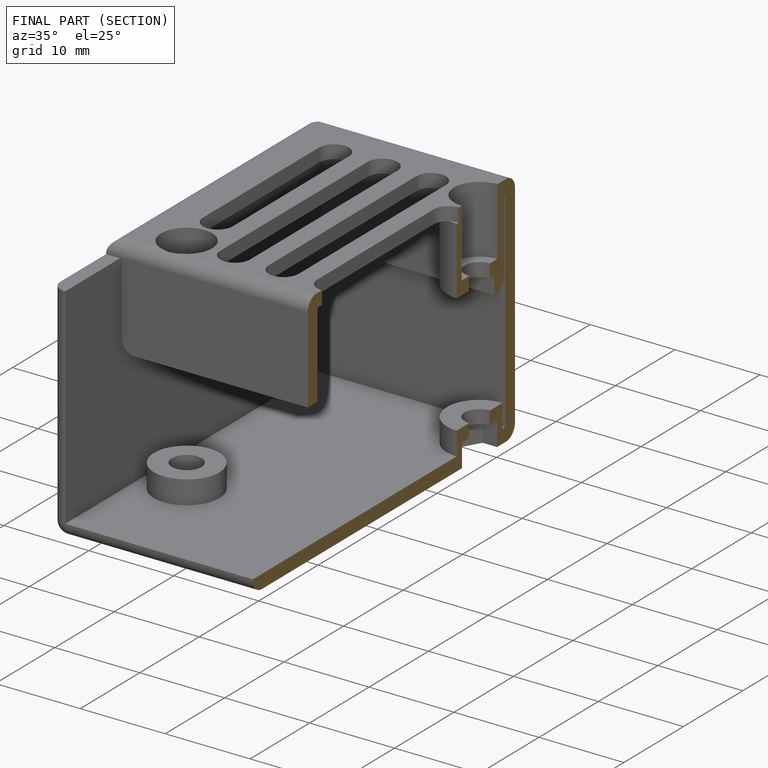
[diagram: finished part — half-section view (interior)]
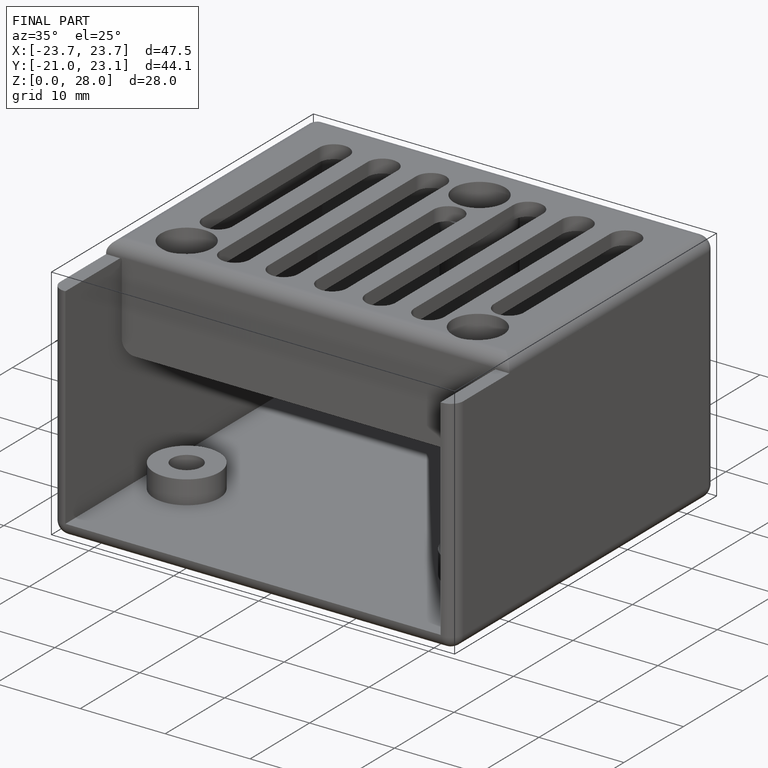
[diagram: finished part — iso view with bounding-box wireframe]
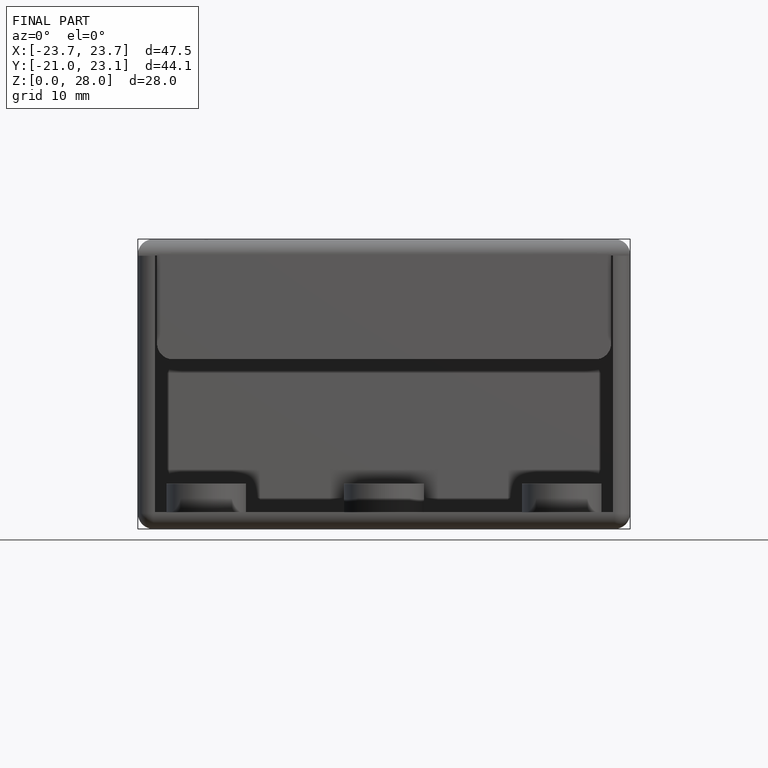
[diagram: finished part — front view with bounding-box wireframe]
